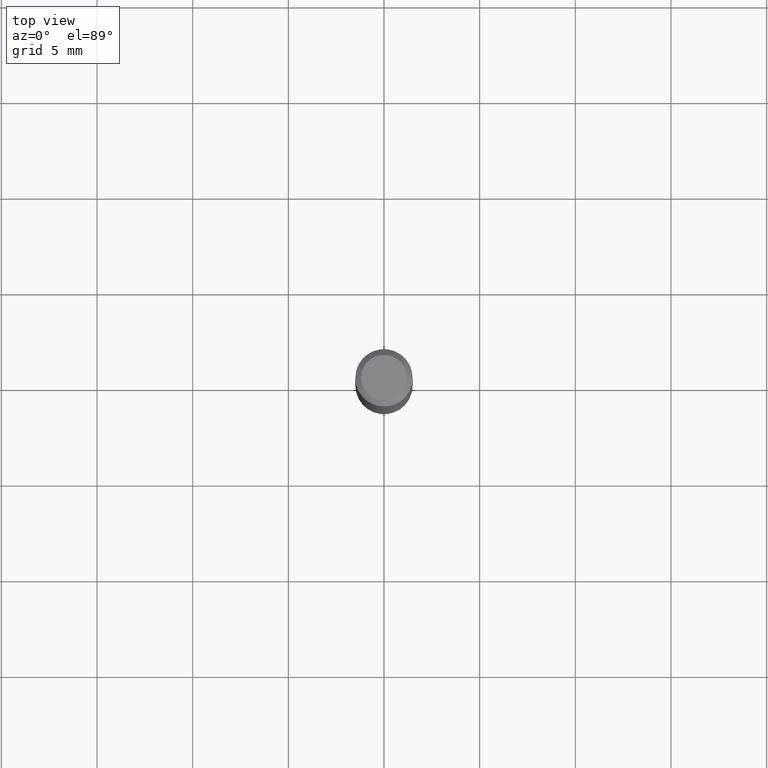
[diagram: clean part render]
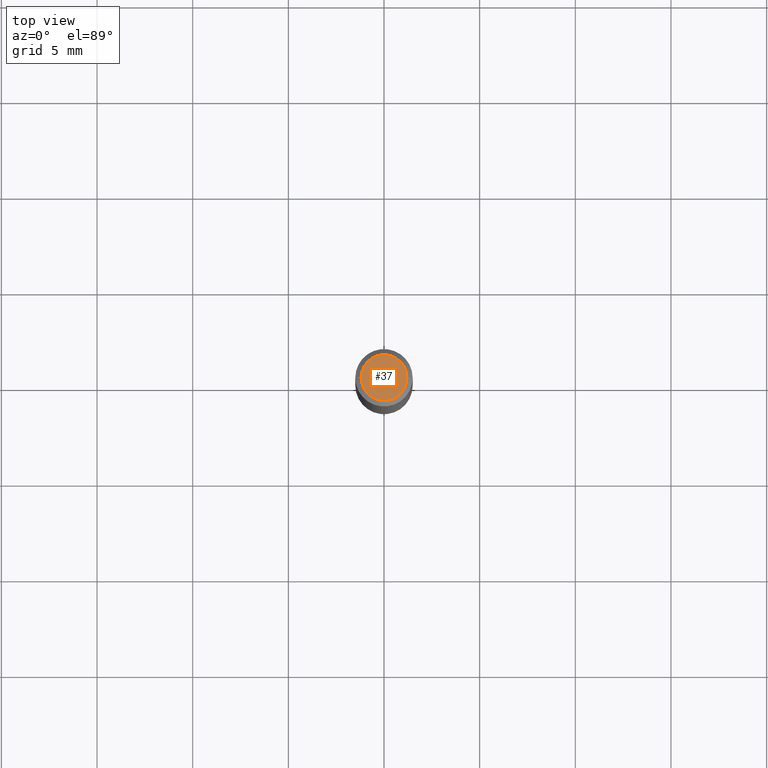
[diagram: same view with one face highlighted and labeled with its STEP entity id]
A machine part, top view. The second image highlights one B-rep face of the part: STEP entity #37.
In plain terms, the highlighted planar face has unit normal (0, -0, -1).
Its self-contained STEP definition (entity closure, byte-faithful):
#37 = ADVANCED_FACE ( 'NONE', ( #269 ), #454, .F. ) ;
#45 = EDGE_CURVE ( 'NONE', #334, #67, #134, .T. ) ;
#47 = AXIS2_PLACEMENT_3D ( 'NONE', #462, #228, #122 ) ;
#67 = VERTEX_POINT ( 'NONE', #162 ) ;
#73 = AXIS2_PLACEMENT_3D ( 'NONE', #310, #99, #352 ) ;
#99 = DIRECTION ( 'NONE',  ( -2.445468806185136597E-29, 3.491481338843145583E-15, 1.000000000000000000 ) ) ;
#118 = EDGE_CURVE ( 'NONE', #67, #334, #233, .T. ) ;
#122 = DIRECTION ( 'NONE',  ( 1.000000000000000000, -6.982962677686266711E-15, 4.876185090822587894E-29 ) ) ;
#134 = CIRCLE ( 'NONE', #47, 0.04724000000000000421 ) ;
#159 = AXIS2_PLACEMENT_3D ( 'NONE', #227, #425, #265 ) ;
#162 = CARTESIAN_POINT ( 'NONE',  ( -0.04724000000000000421, 3.504923541997677355E-16, -3.380025165670481712E-19 ) ) ;
#227 = CARTESIAN_POINT ( 'NONE',  ( 4.132873053354867254E-48, -5.900647395337818946E-34, -1.690012582823346072E-19 ) ) ;
#228 = DIRECTION ( 'NONE',  ( -2.445468806185136597E-29, 3.491481338843145583E-15, 1.000000000000000000 ) ) ;
#233 = CIRCLE ( 'NONE', #73, 0.04724000000000000421 ) ;
#265 = DIRECTION ( 'NONE',  ( -1.000000000000000000, 6.982962677686265922E-15, -4.876176775795935793E-29 ) ) ;
#269 = FACE_OUTER_BOUND ( 'NONE', #489, .T. ) ;
#284 = CARTESIAN_POINT ( 'NONE',  ( 0.04724000000000000421, -3.852183633974369345E-16, -3.380025165621689721E-19 ) ) ;
#310 = CARTESIAN_POINT ( 'NONE',  ( 8.265746106709734507E-48, -1.180129479067563789E-33, -3.380025165646692144E-19 ) ) ;
#334 = VERTEX_POINT ( 'NONE', #284 ) ;
#352 = DIRECTION ( 'NONE',  ( 1.000000000000000000, -6.982962677686266711E-15, 4.876185090822587894E-29 ) ) ;
#418 = ORIENTED_EDGE ( 'NONE', *, *, #45, .T. ) ;
#425 = DIRECTION ( 'NONE',  ( 2.438088387897960049E-29, -3.491481338843145188E-15, -1.000000000000000000 ) ) ;
#437 = ORIENTED_EDGE ( 'NONE', *, *, #118, .T. ) ;
#454 = PLANE ( 'NONE',  #159 ) ;
#462 = CARTESIAN_POINT ( 'NONE',  ( 8.265746106709734507E-48, -1.180129479067563789E-33, -3.380025165646692144E-19 ) ) ;
#489 = EDGE_LOOP ( 'NONE', ( #437, #418 ) ) ;